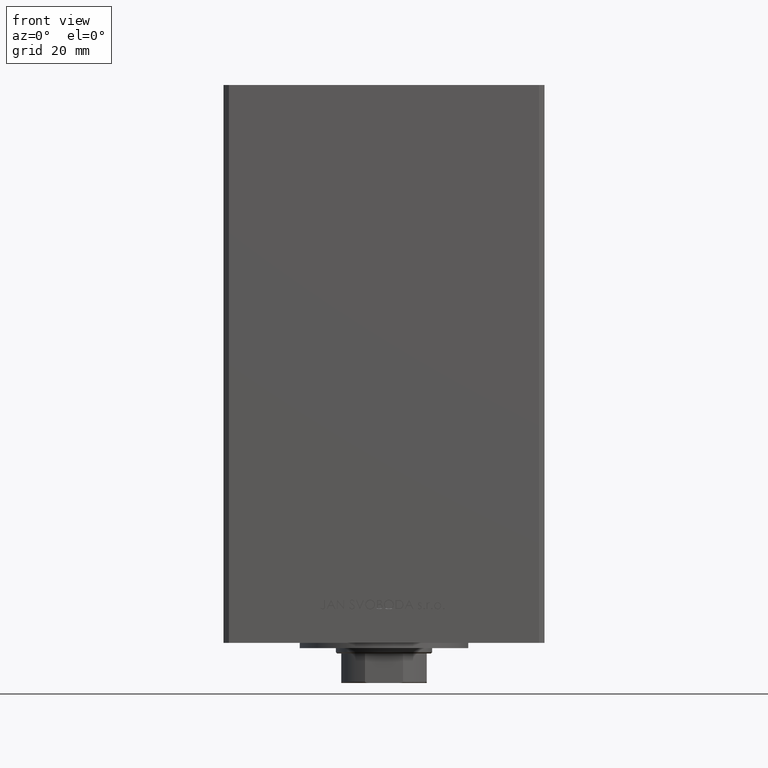
[diagram: clean part render]
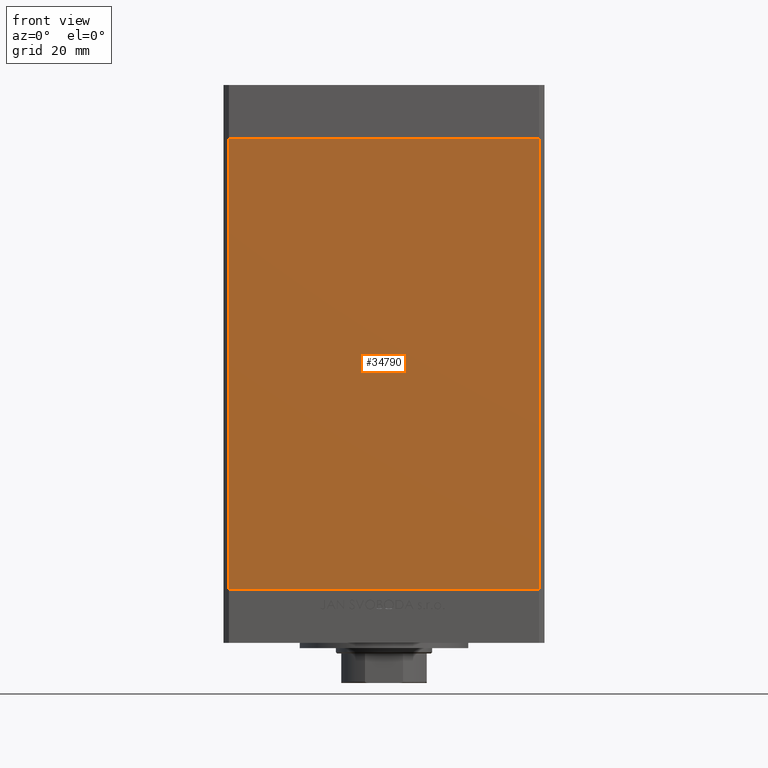
[diagram: same view with one face highlighted and labeled with its STEP entity id]
A machine part, front view. The second image highlights one B-rep face of the part: STEP entity #34790.
In plain terms, the highlighted planar face has unit normal (0, 1, 0).
Its self-contained STEP definition (entity closure, byte-faithful):
#427 = VERTEX_POINT ( 'NONE', #26761 ) ;
#2119 = ORIENTED_EDGE ( 'NONE', *, *, #46152, .T. ) ;
#3964 = EDGE_CURVE ( 'NONE', #19432, #30390, #26228, .T. ) ;
#4877 = VECTOR ( 'NONE', #41469, 1000.000000000000000 ) ;
#6709 = VECTOR ( 'NONE', #34714, 1000.000000000000000 ) ;
#7780 = DIRECTION ( 'NONE',  ( 1.000000000000000000, 0.000000000000000000, 0.000000000000000000 ) ) ;
#9043 = ORIENTED_EDGE ( 'NONE', *, *, #14784, .F. ) ;
#12331 = VECTOR ( 'NONE', #15510, 1000.000000000000000 ) ;
#12490 = CARTESIAN_POINT ( 'NONE',  ( -57.99999999999997868, -51.00000000000000711, 0.000000000000000000 ) ) ;
#13076 = FACE_OUTER_BOUND ( 'NONE', #47016, .T. ) ;
#14256 = ORIENTED_EDGE ( 'NONE', *, *, #27581, .F. ) ;
#14784 = EDGE_CURVE ( 'NONE', #19432, #427, #26058, .T. ) ;
#15510 = DIRECTION ( 'NONE',  ( -0.000000000000000000, -0.000000000000000000, -1.000000000000000000 ) ) ;
#15811 = LINE ( 'NONE', #38197, #6709 ) ;
#19432 = VERTEX_POINT ( 'NONE', #43256 ) ;
#19465 = LINE ( 'NONE', #12490, #42825 ) ;
#26058 = LINE ( 'NONE', #40485, #4877 ) ;
#26228 = LINE ( 'NONE', #48847, #12331 ) ;
#26761 = CARTESIAN_POINT ( 'NONE',  ( 57.99999999999997868, -51.00000000000000711, 168.5000000000000000 ) ) ;
#27581 = EDGE_CURVE ( 'NONE', #427, #46719, #15811, .T. ) ;
#30390 = VERTEX_POINT ( 'NONE', #41268 ) ;
#34714 = DIRECTION ( 'NONE',  ( -0.000000000000000000, -0.000000000000000000, -1.000000000000000000 ) ) ;
#34790 = ADVANCED_FACE ( 'NONE', ( #13076 ), #46171, .F. ) ;
#38197 = CARTESIAN_POINT ( 'NONE',  ( 57.99999999999997868, -51.00000000000000711, 168.5000000000000000 ) ) ;
#39679 = DIRECTION ( 'NONE',  ( 0.000000000000000000, -0.000000000000000000, 1.000000000000000000 ) ) ;
#40485 = CARTESIAN_POINT ( 'NONE',  ( -57.99999999999997868, -51.00000000000000711, 168.5000000000000000 ) ) ;
#40959 = AXIS2_PLACEMENT_3D ( 'NONE', #43409, #42688, #39679 ) ;
#41268 = CARTESIAN_POINT ( 'NONE',  ( -57.99999999999997868, -51.00000000000000711, 0.000000000000000000 ) ) ;
#41469 = DIRECTION ( 'NONE',  ( 1.000000000000000000, 0.000000000000000000, 0.000000000000000000 ) ) ;
#42688 = DIRECTION ( 'NONE',  ( 0.000000000000000000, 1.000000000000000000, 0.000000000000000000 ) ) ;
#42825 = VECTOR ( 'NONE', #7780, 1000.000000000000000 ) ;
#43256 = CARTESIAN_POINT ( 'NONE',  ( -57.99999999999997868, -51.00000000000000711, 168.5000000000000000 ) ) ;
#43409 = CARTESIAN_POINT ( 'NONE',  ( -57.99999999999997868, -51.00000000000000711, 168.5000000000000000 ) ) ;
#44473 = CARTESIAN_POINT ( 'NONE',  ( 57.99999999999997868, -51.00000000000000711, 0.000000000000000000 ) ) ;
#46152 = EDGE_CURVE ( 'NONE', #30390, #46719, #19465, .T. ) ;
#46171 = PLANE ( 'NONE',  #40959 ) ;
#46719 = VERTEX_POINT ( 'NONE', #44473 ) ;
#47016 = EDGE_LOOP ( 'NONE', ( #2119, #14256, #9043, #48747 ) ) ;
#48747 = ORIENTED_EDGE ( 'NONE', *, *, #3964, .T. ) ;
#48847 = CARTESIAN_POINT ( 'NONE',  ( -57.99999999999997868, -51.00000000000000711, 168.5000000000000000 ) ) ;